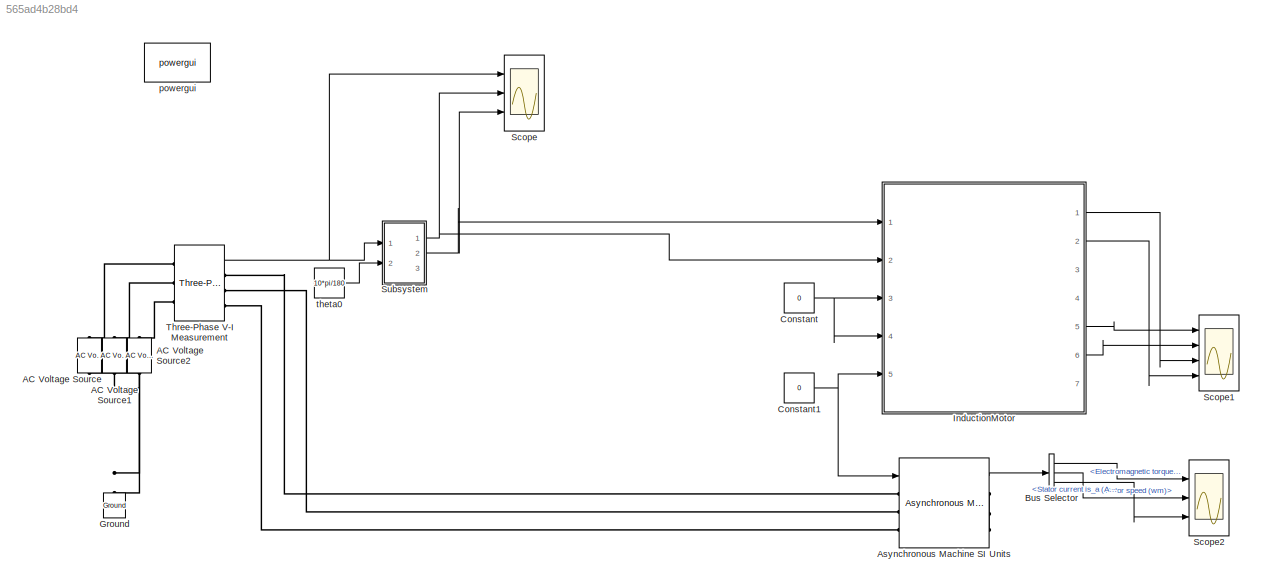
MODEL slx_565ad4b28bd4
KIND model
CONFIG AbsTol = auto
CONFIG EnableMultiTasking = off
CONFIG FixedStep = auto
CONFIG MaxStep = auto
CONFIG MinStep = auto
CONFIG RelTol = 1e-3
CONFIG SampleTimeConstraint = Unconstrained
CONFIG Solver = ode4
CONFIG SolverName = ode4
CONFIG StartTime = 0.0
CONFIG StopTime = 1
BLOCK [Reference] AC Voltage Source  REF=powerlib/Electrical
Sources/AC Voltage Source
  Ports = [0, 0, 0, 0, 0, 1, 1]
  SourceBlock = powerlib/Electrical\nSources/AC Voltage Source
  SourceProductBaseCode = PS
  SourceProductName = Simscape Power Systems
  SourceType = AC Voltage Source
BLOCK [Reference] AC Voltage Source1  REF=powerlib/Electrical
Sources/AC Voltage Source
  Ports = [0, 0, 0, 0, 0, 1, 1]
  SourceBlock = powerlib/Electrical\nSources/AC Voltage Source
  SourceProductBaseCode = PS
  SourceProductName = Simscape Power Systems
  SourceType = AC Voltage Source
BLOCK [Reference] AC Voltage Source2  REF=powerlib/Electrical
Sources/AC Voltage Source
  Ports = [0, 0, 0, 0, 0, 1, 1]
  SourceBlock = powerlib/Electrical\nSources/AC Voltage Source
  SourceProductBaseCode = PS
  SourceProductName = Simscape Power Systems
  SourceType = AC Voltage Source
BLOCK [Reference] Asynchronous Machine SI Units  REF=powerlib/Machines/Asynchronous Machine
SI Units
  Ports = [1, 1, 0, 0, 0, 3, 3]
  SourceBlock = powerlib/Machines/Asynchronous Machine\nSI Units
  SourceProductBaseCode = PS
  SourceProductName = Simscape Power Systems
  SourceType = Asynchronous Machine
BLOCK [BusSelector] Bus Selector
  OutputAsBus = off
  OutputSignals = Mechanical.Electromagnetic torque Te (N*m),Mechanical.Rotor speed (wm),Stator measurements.Stator current is_a (A)
  Ports = [1, 3]
BLOCK [Constant] Constant
  Value = 0
BLOCK [Constant] Constant1
  Value = 0
BLOCK [Reference] Ground  REF=powerlib/Elements/Ground
  Ports = [0, 0, 0, 0, 0, 1]
  SourceBlock = powerlib/Elements/Ground
  SourceProductBaseCode = PS
  SourceProductName = Simscape Power Systems
  SourceType = Ground
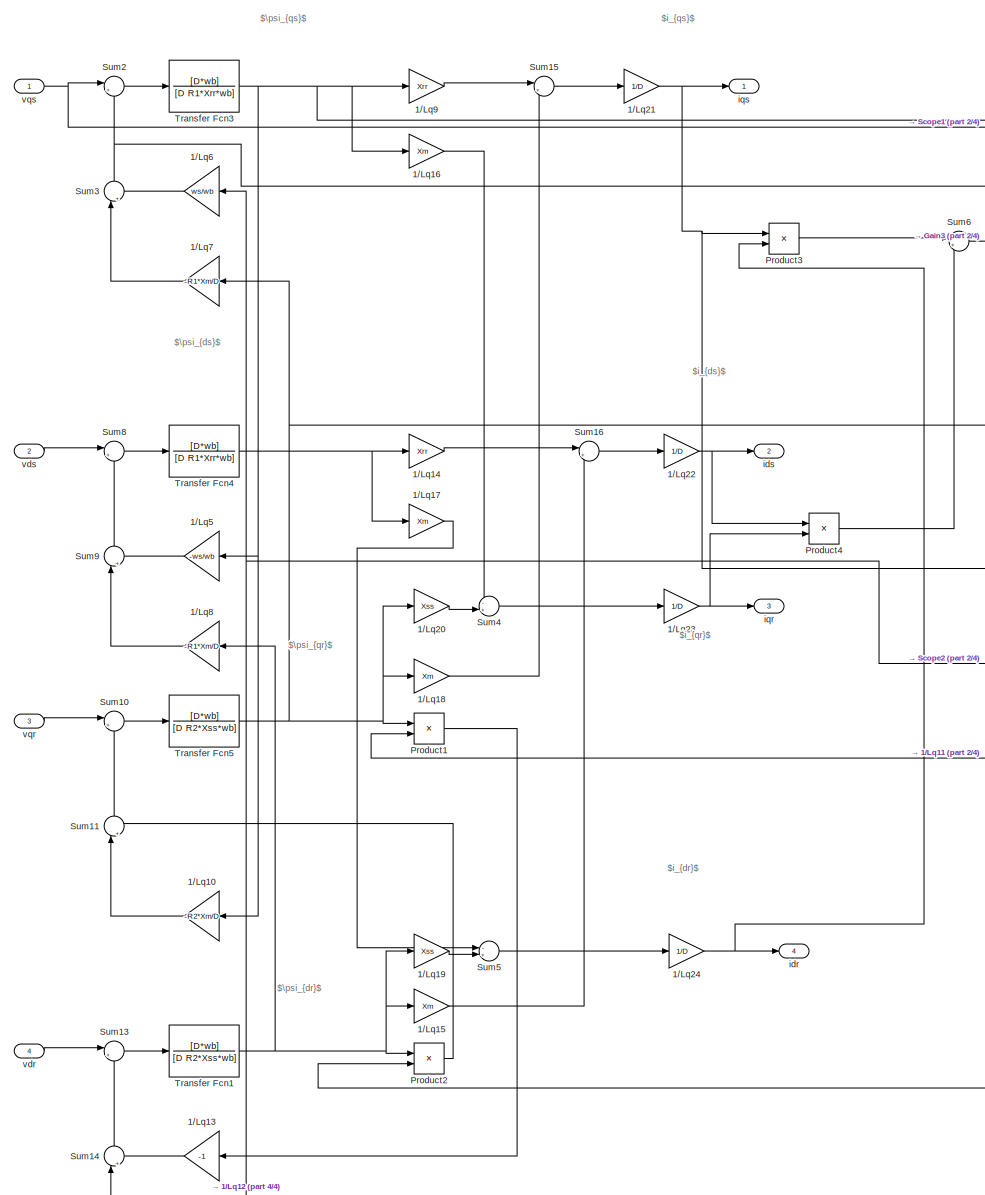
[diagram: InductionMotor - part 1/4, center side, full height]
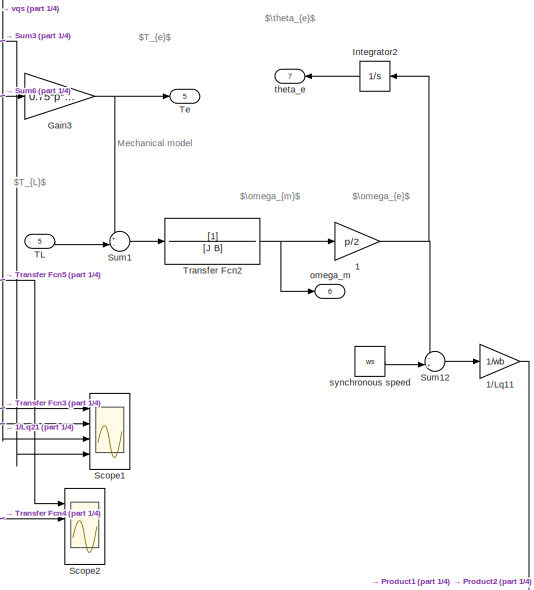
[diagram: InductionMotor - part 2/4, middle right region]
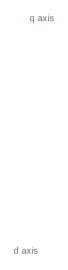
[diagram: InductionMotor - part 3/4, middle left region]
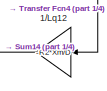
[diagram: InductionMotor - part 4/4, bottom left region]
BLOCK [SubSystem] InductionMotor
  Ports = [5, 7]
  RequestExecContextInheritance = off
BLOCK [Gain] InductionMotor/  1
  Gain = p/2
  SaturateOnIntegerOverflow = off
BLOCK [Gain] InductionMotor/1//Lq10
  Gain = -R2*Xm/D
BLOCK [Gain] InductionMotor/1//Lq11
  Gain = 1/wb
BLOCK [Gain] InductionMotor/1//Lq12
  Gain = -R2*Xm/D
BLOCK [Gain] InductionMotor/1//Lq13
  Gain = -1
BLOCK [Gain] InductionMotor/1//Lq14
  Gain = Xrr
BLOCK [Gain] InductionMotor/1//Lq15
  Gain = Xm
BLOCK [Gain] InductionMotor/1//Lq16
  Gain = Xm
BLOCK [Gain] InductionMotor/1//Lq17
  Gain = Xm
BLOCK [Gain] InductionMotor/1//Lq18
  Gain = Xm
BLOCK [Gain] InductionMotor/1//Lq19
  Gain = Xss
BLOCK [Gain] InductionMotor/1//Lq20
  Gain = Xss
BLOCK [Gain] InductionMotor/1//Lq21
  Gain = 1/D
BLOCK [Gain] InductionMotor/1//Lq22
  Gain = 1/D
BLOCK [Gain] InductionMotor/1//Lq23
  Gain = 1/D
BLOCK [Gain] InductionMotor/1//Lq24
  Gain = 1/D
BLOCK [Gain] InductionMotor/1//Lq5
  Gain = -ws/wb
BLOCK [Gain] InductionMotor/1//Lq6
  Gain = ws/wb
BLOCK [Gain] InductionMotor/1//Lq7
  Gain = -R1*Xm/D
BLOCK [Gain] InductionMotor/1//Lq8
  Gain = -R1*Xm/D
BLOCK [Gain] InductionMotor/1//Lq9
  Gain = Xrr
BLOCK [Gain] InductionMotor/Gain3
  Gain = 0.75*p*Lm
BLOCK [Integrator] InductionMotor/Integrator2
  Ports = [1, 1]
BLOCK [Product] InductionMotor/Product1
  Ports = [2, 1]
  RndMeth = Floor
BLOCK [Product] InductionMotor/Product2
  Ports = [2, 1]
  RndMeth = Floor
BLOCK [Product] InductionMotor/Product3
  Ports = [2, 1]
  RndMeth = Floor
BLOCK [Product] InductionMotor/Product4
  Ports = [2, 1]
  RndMeth = Floor
BLOCK [Scope] InductionMotor/Scope1
  Floating = off
  NumInputPorts = 4
  Ports = [4]
  ScopeSpecificationString = Simulink.scopes.TimeScopeBlockCfg('CurrentConfiguration', extmgr.ConfigurationSet(extmgr.Configuration('Core','General UI',true,'FigureColor',[0.8 0.8 0.8]),extmgr.Configuration('Core','Source UI',true),extmgr.Configuration('Sources','WiredSimulink',true,'DataLoggingSaveFormat','StructureWithTime','DataLoggingDecimation','1','DataLoggingDecimateData',true,'DataLoggingVariableName','ScopeData1'),ex...<+4944ch>
BLOCK [Scope] InductionMotor/Scope2
  Floating = off
  NumInputPorts = 4
  Ports = [4]
  ScopeSpecificationString = Simulink.scopes.TimeScopeBlockCfg('CurrentConfiguration', extmgr.ConfigurationSet(extmgr.Configuration('Core','General UI',true,'FigureColor',[0.8 0.8 0.8]),extmgr.Configuration('Core','Source UI',true),extmgr.Configuration('Sources','WiredSimulink',true,'DataLoggingSaveFormat','StructureWithTime','DataLoggingDecimation','1','DataLoggingDecimateData',true,'DataLoggingVariableName','ScopeData2'),ex...<+4958ch>
BLOCK [Sum] InductionMotor/Sum1
  IconShape = round
  Inputs = +-|
  Ports = [2, 1]
BLOCK [Sum] InductionMotor/Sum10
  IconShape = round
  Inputs = |+-
  Ports = [2, 1]
BLOCK [Sum] InductionMotor/Sum11
  IconShape = round
  Inputs = |++
  Ports = [2, 1]
BLOCK [Sum] InductionMotor/Sum12
  IconShape = round
  Inputs = -+|
  Ports = [2, 1]
BLOCK [Sum] InductionMotor/Sum13
  IconShape = round
  Inputs = |+-
  Ports = [2, 1]
BLOCK [Sum] InductionMotor/Sum14
  IconShape = round
  Inputs = |++
  Ports = [2, 1]
BLOCK [Sum] InductionMotor/Sum15
  IconShape = round
  Inputs = |+-
  Ports = [2, 1]
BLOCK [Sum] InductionMotor/Sum16
  IconShape = round
  Inputs = |+-
  Ports = [2, 1]
BLOCK [Sum] InductionMotor/Sum2
  IconShape = round
  Inputs = |+-
  Ports = [2, 1]
BLOCK [Sum] InductionMotor/Sum3
  IconShape = round
  Inputs = |++
  Ports = [2, 1]
BLOCK [Sum] InductionMotor/Sum4
  IconShape = round
  Inputs = -+|
  Ports = [2, 1]
BLOCK [Sum] InductionMotor/Sum5
  IconShape = round
  Inputs = -+|
  Ports = [2, 1]
BLOCK [Sum] InductionMotor/Sum6
  IconShape = round
  Inputs = |+-
  Ports = [2, 1]
BLOCK [Sum] InductionMotor/Sum8
  IconShape = round
  Inputs = |+-
  Ports = [2, 1]
BLOCK [Sum] InductionMotor/Sum9
  IconShape = round
  Inputs = |++
  Ports = [2, 1]
BLOCK [Inport] InductionMotor/TL
  IconDisplay = Port number
  Port = 5
BLOCK [Outport] InductionMotor/Te
  IconDisplay = Port number
  Port = 5
BLOCK [TransferFcn] InductionMotor/Transfer Fcn1
  Denominator = [D R2*Xss*wb]
  Numerator = [D*wb]
BLOCK [TransferFcn] InductionMotor/Transfer Fcn2
  Denominator = [J B]
BLOCK [TransferFcn] InductionMotor/Transfer Fcn3
  Denominator = [D R1*Xrr*wb]
  Numerator = [D*wb]
BLOCK [TransferFcn] InductionMotor/Transfer Fcn4
  Denominator = [D R1*Xrr*wb]
  Numerator = [D*wb]
BLOCK [TransferFcn] InductionMotor/Transfer Fcn5
  Denominator = [D R2*Xss*wb]
  Numerator = [D*wb]
BLOCK [Outport] InductionMotor/idr
  IconDisplay = Port number
  Port = 4
BLOCK [Outport] InductionMotor/ids
  IconDisplay = Port number
  Port = 2
BLOCK [Outport] InductionMotor/iqr
  IconDisplay = Port number
  Port = 3
BLOCK [Outport] InductionMotor/iqs
  IconDisplay = Port number
BLOCK [Outport] InductionMotor/omega_m
  IconDisplay = Port number
  Port = 6
BLOCK [Constant] InductionMotor/synchronous speed
  Value = ws
BLOCK [Outport] InductionMotor/theta_e
  IconDisplay = Port number
  Port = 7
BLOCK [Inport] InductionMotor/vdr
  IconDisplay = Port number
  Port = 4
BLOCK [Inport] InductionMotor/vds
  IconDisplay = Port number
  Port = 2
BLOCK [Inport] InductionMotor/vqr
  IconDisplay = Port number
  Port = 3
BLOCK [Inport] InductionMotor/vqs
  IconDisplay = Port number
BLOCK [Scope] Scope
  Floating = off
  NumInputPorts = 3
  Ports = [3]
  ScopeSpecificationString = Simulink.scopes.TimeScopeBlockCfg('CurrentConfiguration', extmgr.ConfigurationSet(extmgr.Configuration('Core','General UI',true,'FigureColor',[0.8 0.8 0.8]),extmgr.Configuration('Core','Source UI',true),extmgr.Configuration('Sources','WiredSimulink',true,'DataLoggingSaveFormat','StructureWithTime','DataLoggingDecimation','1','DataLoggingDecimateData',true),extmgr.Configuration('Visuals','Time Doma...<+4264ch>
BLOCK [Scope] Scope1
  Floating = off
  NumInputPorts = 4
  Ports = [4]
  ScopeSpecificationString = Simulink.scopes.TimeScopeBlockCfg('CurrentConfiguration', extmgr.ConfigurationSet(extmgr.Configuration('Core','General UI',true,'FigureColor',[0.8 0.8 0.8]),extmgr.Configuration('Core','Source UI',true),extmgr.Configuration('Sources','WiredSimulink',true,'DataLoggingSaveFormat','StructureWithTime','DataLoggingDecimation','1','DataLoggingDecimateData',true,'DataLoggingVariableName','ScopeData1'),ex...<+4979ch>
BLOCK [Scope] Scope2
  Floating = off
  NumInputPorts = 3
  Ports = [3]
  ScopeSpecificationString = Simulink.scopes.TimeScopeBlockCfg('CurrentConfiguration', extmgr.ConfigurationSet(extmgr.Configuration('Core','General UI',true,'FigureColor',[0.8 0.8 0.8]),extmgr.Configuration('Core','Source UI',true),extmgr.Configuration('Sources','WiredSimulink',true,'DataLoggingSaveFormat','StructureWithTime','DataLoggingDecimation','1','DataLoggingDecimateData',true,'DataLoggingVariableName','ScopeData2'),ex...<+4260ch>
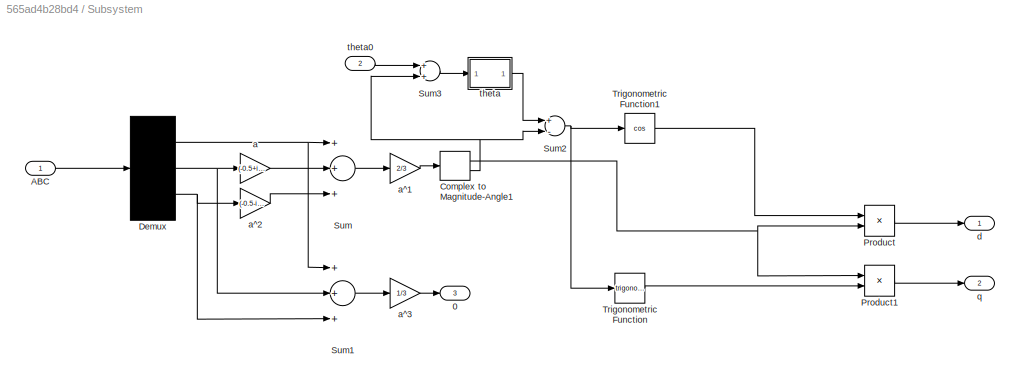
BLOCK [SubSystem] Subsystem
  Ports = [2, 3]
  RequestExecContextInheritance = off
BLOCK [Outport] Subsystem/0
  IconDisplay = Port number
  Port = 3
BLOCK [Inport] Subsystem/ABC
  IconDisplay = Port number
BLOCK [ComplexToMagnitudeAngle] Subsystem/Complex to Magnitude-Angle1
  Ports = [1, 2]
BLOCK [Demux] Subsystem/Demux
  Outputs = 3
  Ports = [1, 3]
BLOCK [Product] Subsystem/Product
  InputSameDT = off
  OutDataTypeStr = Inherit: Inherit via internal rule
  Ports = [2, 1]
  RndMeth = Floor
  SaturateOnIntegerOverflow = off
BLOCK [Product] Subsystem/Product1
  InputSameDT = off
  OutDataTypeStr = Inherit: Inherit via internal rule
  Ports = [2, 1]
  RndMeth = Floor
  SaturateOnIntegerOverflow = off
BLOCK [Sum] Subsystem/Sum
  InputSameDT = off
  Inputs = +++
  OutDataTypeStr = Inherit: Inherit via internal rule
  Ports = [3, 1]
  SaturateOnIntegerOverflow = off
BLOCK [Sum] Subsystem/Sum1
  InputSameDT = off
  Inputs = +++
  OutDataTypeStr = Inherit: Inherit via internal rule
  Ports = [3, 1]
  SaturateOnIntegerOverflow = off
BLOCK [Sum] Subsystem/Sum2
  InputSameDT = off
  Inputs = +-
  OutDataTypeStr = Inherit: Inherit via internal rule
  Ports = [2, 1]
  SaturateOnIntegerOverflow = off
BLOCK [Sum] Subsystem/Sum3
  InputSameDT = off
  OutDataTypeStr = Inherit: Inherit via internal rule
  Ports = [2, 1]
  SaturateOnIntegerOverflow = off
BLOCK [Trigonometry] Subsystem/Trigonometric Function
  Ports = [1, 1]
BLOCK [Trigonometry] Subsystem/Trigonometric Function1
  Operator = cos
  Ports = [1, 1]
BLOCK [Gain] Subsystem/a
  Gain = (-0.5+i*0.8660254)
  OutDataTypeStr = Inherit: Inherit via internal rule
  ParamDataTypeStr = Inherit: Inherit via internal rule
  SaturateOnIntegerOverflow = off
BLOCK [Gain] Subsystem/a^1
  Gain = 2/3
  OutDataTypeStr = Inherit: Inherit via internal rule
  ParamDataTypeStr = Inherit: Inherit via internal rule
  SaturateOnIntegerOverflow = off
BLOCK [Gain] Subsystem/a^2
  Gain = (-0.5-i*0.8660254)
  OutDataTypeStr = Inherit: Inherit via internal rule
  ParamDataTypeStr = Inherit: Inherit via internal rule
  SaturateOnIntegerOverflow = off
BLOCK [Gain] Subsystem/a^3
  Gain = 1/3
  OutDataTypeStr = Inherit: Inherit via internal rule
  ParamDataTypeStr = Inherit: Inherit via internal rule
  SaturateOnIntegerOverflow = off
BLOCK [Outport] Subsystem/d
  IconDisplay = Port number
BLOCK [Outport] Subsystem/q
  IconDisplay = Port number
  Port = 2
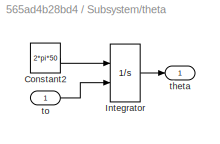
BLOCK [SubSystem] Subsystem/theta
  Ports = [1, 1]
  RequestExecContextInheritance = off
BLOCK [Constant] Subsystem/theta/Constant2
  Value = 2*pi*50
BLOCK [Integrator] Subsystem/theta/Integrator
  InitialConditionSource = external
  LowerSaturationLimit = -pi
  Ports = [2, 1]
  UpperSaturationLimit = pi
BLOCK [Outport] Subsystem/theta/theta
  IconDisplay = Port number
BLOCK [Inport] Subsystem/theta/to
  IconDisplay = Port number
BLOCK [Inport] Subsystem/theta0
  IconDisplay = Port number
  Port = 2
BLOCK [Reference] Three-Phase V-I Measurement  REF=powerlib/Measurements/Three-Phase
V-I Measurement
  Ports = [0, 1, 0, 0, 0, 3, 3]
  SourceBlock = powerlib/Measurements/Three-Phase\nV-I Measurement
  SourceProductBaseCode = PS
  SourceProductName = Simscape Power Systems
  SourceType = Three-Phase VI Measurement
BLOCK [Reference] powergui  REF=powerlib/powergui
  Ports = []
  Priority = 1
  SourceBlock = powerlib/powergui
  SourceProductBaseCode = PS
  SourceProductName = Simscape Power Systems
  SourceType = PSB option menu block
BLOCK [Constant] theta0
  Value = 10*pi/180
ANNOTATION InductionMotor: q axis
ANNOTATION InductionMotor: d axis
ANNOTATION InductionMotor: $T_{L}$
ANNOTATION InductionMotor: $T_{e}$
ANNOTATION InductionMotor: $\omega_{e}$
ANNOTATION InductionMotor: $\omega_{m}$
ANNOTATION InductionMotor: $\theta_{e}$
ANNOTATION InductionMotor: $\psi_{dr}$
ANNOTATION InductionMotor: $\psi_{ds}$
ANNOTATION InductionMotor: $\psi_{qr}$
ANNOTATION InductionMotor: $\psi_{qs}$
ANNOTATION InductionMotor: $i_{dr}$
ANNOTATION InductionMotor: $i_{ds}$
ANNOTATION InductionMotor: $i_{qr}$
ANNOTATION InductionMotor: $i_{qs}$
ANNOTATION InductionMotor: Mechanical model
LINE Asynchronous Machine SI Units:1 -> Bus Selector:1
LINE Bus Selector:1 -> Scope2:1
LINE Bus Selector:2 -> Scope2:2
LINE Bus Selector:3 -> Scope2:3
NET Constant1:1 -> Asynchronous Machine SI Units:1, InductionMotor:5
NET Constant:1 -> InductionMotor:3, InductionMotor:4
NET InductionMotor/  1:1 -> InductionMotor/Integrator2:1, InductionMotor/Sum12:1
LINE InductionMotor/1//Lq10:1 -> InductionMotor/Sum11:1
NET InductionMotor/1//Lq11:1 -> InductionMotor/Product1:2, InductionMotor/Product2:2
LINE InductionMotor/1//Lq12:1 -> InductionMotor/Sum14:1
LINE InductionMotor/1//Lq13:1 -> InductionMotor/Sum14:2
LINE InductionMotor/1//Lq14:1 -> InductionMotor/Sum16:1
LINE InductionMotor/1//Lq15:1 -> InductionMotor/Sum16:2
LINE InductionMotor/1//Lq16:1 -> InductionMotor/Sum4:1
LINE InductionMotor/1//Lq17:1 -> InductionMotor/Sum5:1
LINE InductionMotor/1//Lq18:1 -> InductionMotor/Sum15:2
LINE InductionMotor/1//Lq19:1 -> InductionMotor/Sum5:2
LINE InductionMotor/1//Lq20:1 -> InductionMotor/Sum4:2
NET InductionMotor/1//Lq21:1 -> InductionMotor/Product3:1, InductionMotor/Scope1:2, InductionMotor/iqs:1
NET InductionMotor/1//Lq22:1 -> InductionMotor/Product4:1, InductionMotor/ids:1
NET InductionMotor/1//Lq23:1 -> InductionMotor/Product4:2, InductionMotor/iqr:1
NET InductionMotor/1//Lq24:1 -> InductionMotor/Product3:2, InductionMotor/idr:1
LINE InductionMotor/1//Lq5:1 -> InductionMotor/Sum9:2
LINE InductionMotor/1//Lq6:1 -> InductionMotor/Sum3:2
LINE InductionMotor/1//Lq7:1 -> InductionMotor/Sum3:1
LINE InductionMotor/1//Lq8:1 -> InductionMotor/Sum9:1
LINE InductionMotor/1//Lq9:1 -> InductionMotor/Sum15:1
NET InductionMotor/Gain3:1 -> InductionMotor/Sum1:1, InductionMotor/Te:1
LINE InductionMotor/Integrator2:1 -> InductionMotor/theta_e:1
LINE InductionMotor/Product1:1 -> InductionMotor/1//Lq13:1
LINE InductionMotor/Product2:1 -> InductionMotor/Sum11:2
LINE InductionMotor/Product3:1 -> InductionMotor/Sum6:1
LINE InductionMotor/Product4:1 -> InductionMotor/Sum6:2
LINE InductionMotor/Sum10:1 -> InductionMotor/Transfer Fcn5:1
LINE InductionMotor/Sum11:1 -> InductionMotor/Sum10:2
LINE InductionMotor/Sum12:1 -> InductionMotor/1//Lq11:1
LINE InductionMotor/Sum13:1 -> InductionMotor/Transfer Fcn1:1
LINE InductionMotor/Sum14:1 -> InductionMotor/Sum13:2
LINE InductionMotor/Sum15:1 -> InductionMotor/1//Lq21:1
LINE InductionMotor/Sum16:1 -> InductionMotor/1//Lq22:1
LINE InductionMotor/Sum1:1 -> InductionMotor/Transfer Fcn2:1
LINE InductionMotor/Sum2:1 -> InductionMotor/Transfer Fcn3:1
NET InductionMotor/Sum3:1 -> InductionMotor/Scope1:4, InductionMotor/Sum2:2
LINE InductionMotor/Sum4:1 -> InductionMotor/1//Lq23:1
LINE InductionMotor/Sum5:1 -> InductionMotor/1//Lq24:1
LINE InductionMotor/Sum6:1 -> InductionMotor/Gain3:1
LINE InductionMotor/Sum8:1 -> InductionMotor/Transfer Fcn4:1
LINE InductionMotor/Sum9:1 -> InductionMotor/Sum8:2
LINE InductionMotor/TL:1 -> InductionMotor/Sum1:2
NET InductionMotor/Transfer Fcn1:1 -> InductionMotor/1//Lq15:1, InductionMotor/1//Lq19:1, InductionMotor/1//Lq8:1, InductionMotor/Product2:1
NET InductionMotor/Transfer Fcn2:1 -> InductionMotor/  1:1, InductionMotor/omega_m:1
NET InductionMotor/Transfer Fcn3:1 -> InductionMotor/1//Lq10:1, InductionMotor/1//Lq16:1, InductionMotor/1//Lq5:1, InductionMotor/1//Lq9:1, InductionMotor/Scope1:1
NET InductionMotor/Transfer Fcn4:1 -> InductionMotor/1//Lq12:1, InductionMotor/1//Lq14:1, InductionMotor/1//Lq17:1, InductionMotor/1//Lq6:1, InductionMotor/Scope2:2
NET InductionMotor/Transfer Fcn5:1 -> InductionMotor/1//Lq18:1, InductionMotor/1//Lq20:1, InductionMotor/1//Lq7:1, InductionMotor/Product1:1, InductionMotor/Scope2:1
LINE InductionMotor/synchronous speed:1 -> InductionMotor/Sum12:2
LINE InductionMotor/vdr:1 -> InductionMotor/Sum13:1
LINE InductionMotor/vds:1 -> InductionMotor/Sum8:1
LINE InductionMotor/vqr:1 -> InductionMotor/Sum10:1
NET InductionMotor/vqs:1 -> InductionMotor/Scope1:3, InductionMotor/Sum2:1
LINE InductionMotor:1 -> Scope1:3
LINE InductionMotor:2 -> Scope1:4
LINE InductionMotor:5 -> Scope1:1
LINE InductionMotor:6 -> Scope1:2
LINE Subsystem/ABC:1 -> Subsystem/Demux:1
NET Subsystem/Complex to Magnitude-Angle1:1 -> Subsystem/Product1:1, Subsystem/Product:2
NET Subsystem/Complex to Magnitude-Angle1:2 -> Subsystem/Sum2:2, Subsystem/Sum3:2
NET Subsystem/Demux:1 -> Subsystem/Sum1:1, Subsystem/Sum:1
NET Subsystem/Demux:2 -> Subsystem/Sum1:2, Subsystem/a:1
NET Subsystem/Demux:3 -> Subsystem/Sum1:3, Subsystem/a^2:1
LINE Subsystem/Product1:1 -> Subsystem/q:1
LINE Subsystem/Product:1 -> Subsystem/d:1
LINE Subsystem/Sum1:1 -> Subsystem/a^3:1
NET Subsystem/Sum2:1 -> Subsystem/Trigonometric Function1:1, Subsystem/Trigonometric Function:1
LINE Subsystem/Sum3:1 -> Subsystem/theta:1
LINE Subsystem/Sum:1 -> Subsystem/a^1:1
LINE Subsystem/Trigonometric Function1:1 -> Subsystem/Product:1
LINE Subsystem/Trigonometric Function:1 -> Subsystem/Product1:2
LINE Subsystem/a:1 -> Subsystem/Sum:2
LINE Subsystem/a^1:1 -> Subsystem/Complex to Magnitude-Angle1:1
LINE Subsystem/a^2:1 -> Subsystem/Sum:3
LINE Subsystem/a^3:1 -> Subsystem/0:1
LINE Subsystem/theta/Constant2:1 -> Subsystem/theta/Integrator:1
LINE Subsystem/theta/Integrator:1 -> Subsystem/theta/theta:1
LINE Subsystem/theta/to:1 -> Subsystem/theta/Integrator:2
LINE Subsystem/theta0:1 -> Subsystem/Sum3:1
LINE Subsystem/theta:1 -> Subsystem/Sum2:1
NET Subsystem:1 -> InductionMotor:2, Scope:2
NET Subsystem:2 -> InductionMotor:1, Scope:3
NET Three-Phase V-I Measurement:1 -> Scope:1, Subsystem:1
LINE theta0:1 -> Subsystem:2
PNET net1: AC Voltage Source1:LConn1 -- AC Voltage Source2:LConn1 -- AC Voltage Source:LConn1 -- Ground:LConn1
PLINE AC Voltage Source1:RConn1 -- Three-Phase V-I Measurement:LConn2
PLINE AC Voltage Source2:RConn1 -- Three-Phase V-I Measurement:LConn3
PLINE AC Voltage Source:RConn1 -- Three-Phase V-I Measurement:LConn1
PLINE Asynchronous Machine SI Units:LConn1 -- Three-Phase V-I Measurement:RConn1
PLINE Asynchronous Machine SI Units:LConn2 -- Three-Phase V-I Measurement:RConn2
PLINE Asynchronous Machine SI Units:LConn3 -- Three-Phase V-I Measurement:RConn3
PNET net2: Asynchronous Machine SI Units:RConn1 -- Asynchronous Machine SI Units:RConn2 -- Asynchronous Machine SI Units:RConn3
note: NET lines group one-source signal fan-out (src -> all destinations, sorted); 1:1 wires keep LINE; PNET lines group multi-terminal physical nets as a canonical sorted terminal list (undirected conserving connections); 2-terminal nets keep the pairwise PLINE form
